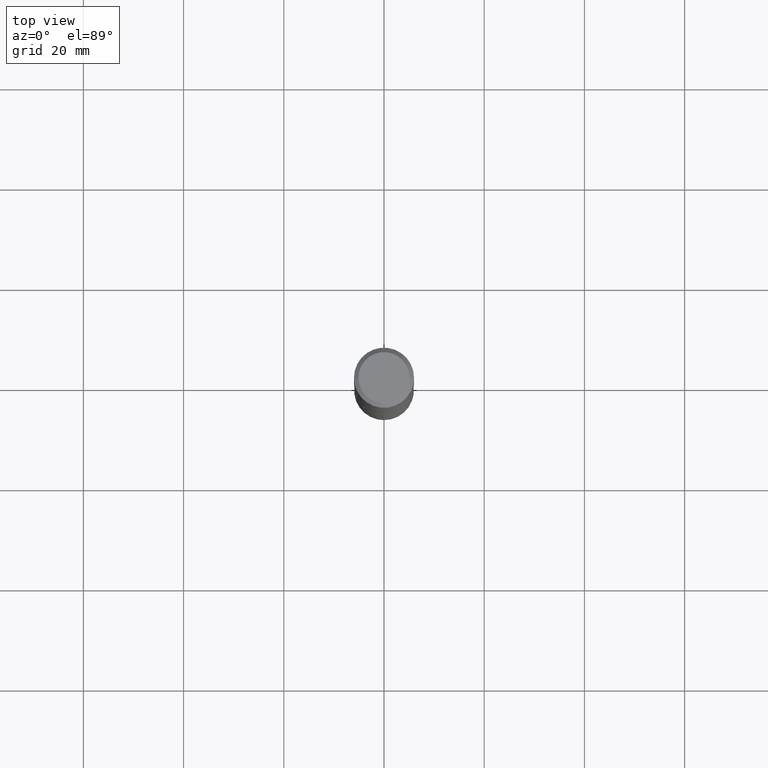
[diagram: clean part render]
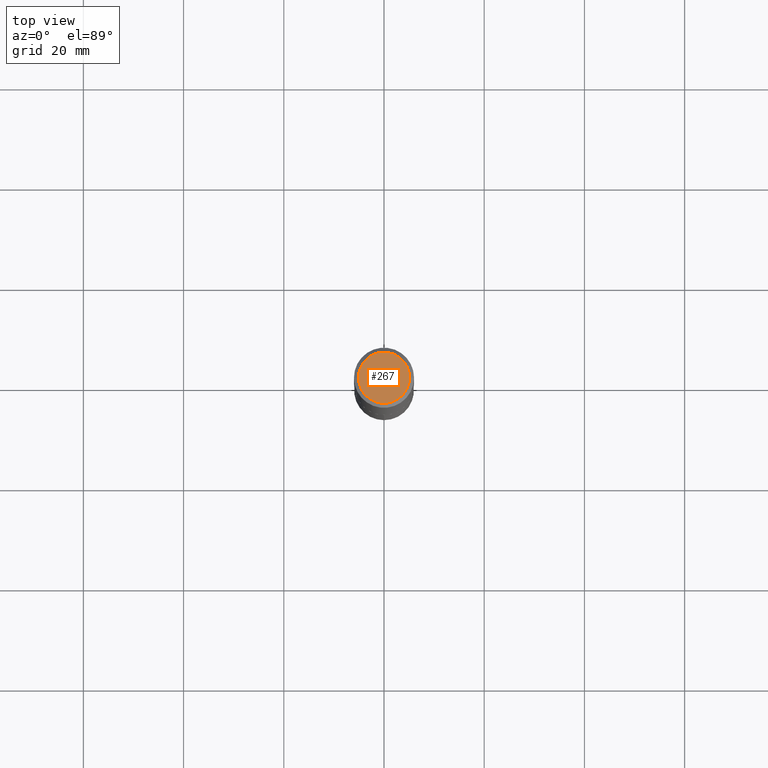
[diagram: same view with one face highlighted and labeled with its STEP entity id]
A machine part, top view. The second image highlights one B-rep face of the part: STEP entity #267.
In plain terms, the highlighted planar face has unit normal (0, -0, -1).
Its self-contained STEP definition (entity closure, byte-faithful):
#1 = AXIS2_PLACEMENT_3D ( 'NONE', #205, #53, #268 ) ;
#2 = VERTEX_POINT ( 'NONE', #252 ) ;
#17 = ORIENTED_EDGE ( 'NONE', *, *, #326, .T. ) ;
#53 = DIRECTION ( 'NONE',  ( -2.445468806185136597E-29, 3.491481338843145583E-15, 1.000000000000000000 ) ) ;
#90 = CARTESIAN_POINT ( 'NONE',  ( -0.2007700000000000040, 1.463821008716677338E-15, 4.096137381438094301E-18 ) ) ;
#106 = AXIS2_PLACEMENT_3D ( 'NONE', #226, #364, #319 ) ;
#155 = EDGE_CURVE ( 'NONE', #2, #347, #208, .T. ) ;
#156 = CARTESIAN_POINT ( 'NONE',  ( -5.008488096090115757E-47, 7.150793614331959538E-33, 2.048068690724057264E-18 ) ) ;
#199 = EDGE_LOOP ( 'NONE', ( #17, #321 ) ) ;
#205 = CARTESIAN_POINT ( 'NONE',  ( -1.001697619218023151E-46, 1.430158722866391908E-32, 4.096137381448114529E-18 ) ) ;
#208 = CIRCLE ( 'NONE', #106, 0.2007700000000000040 ) ;
#226 = CARTESIAN_POINT ( 'NONE',  ( -1.001697619218023151E-46, 1.430158722866391908E-32, 4.096137381448114529E-18 ) ) ;
#252 = CARTESIAN_POINT ( 'NONE',  ( 0.2007700000000000040, -1.560767496960719869E-15, 4.096137381458473721E-18 ) ) ;
#255 = DIRECTION ( 'NONE',  ( -1.000000000000000000, 6.982962677686265922E-15, -4.876176775795935793E-29 ) ) ;
#267 = ADVANCED_FACE ( 'NONE', ( #434 ), #327, .F. ) ;
#268 = DIRECTION ( 'NONE',  ( 1.000000000000000000, -6.982962677686266711E-15, 4.876140833081945105E-29 ) ) ;
#290 = DIRECTION ( 'NONE',  ( 2.438088387897960049E-29, -3.491481338843145188E-15, -1.000000000000000000 ) ) ;
#319 = DIRECTION ( 'NONE',  ( 1.000000000000000000, -6.982962677686266711E-15, 4.876140833081945105E-29 ) ) ;
#321 = ORIENTED_EDGE ( 'NONE', *, *, #155, .T. ) ;
#326 = EDGE_CURVE ( 'NONE', #347, #2, #379, .T. ) ;
#327 = PLANE ( 'NONE',  #411 ) ;
#347 = VERTEX_POINT ( 'NONE', #90 ) ;
#364 = DIRECTION ( 'NONE',  ( -2.445468806185136597E-29, 3.491481338843145583E-15, 1.000000000000000000 ) ) ;
#379 = CIRCLE ( 'NONE', #1, 0.2007700000000000040 ) ;
#411 = AXIS2_PLACEMENT_3D ( 'NONE', #156, #290, #255 ) ;
#434 = FACE_OUTER_BOUND ( 'NONE', #199, .T. ) ;